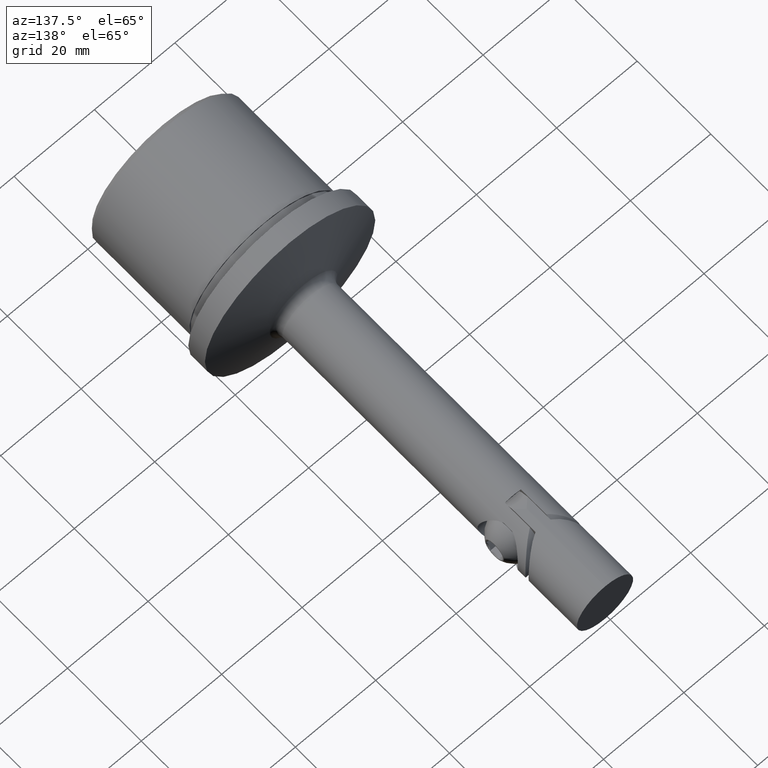
[diagram: clean part render]
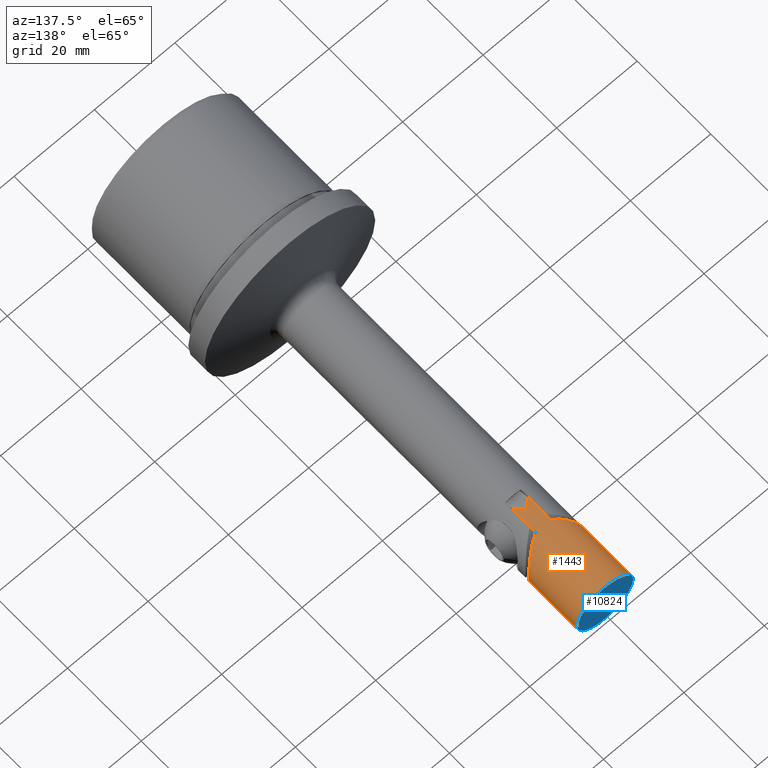
[diagram: same view with the hole feature highlighted: cylindrical wall and planar end face, labeled with their STEP entity ids]
A machine part, auxiliary view. The highlighted faces form one hole feature of diameter 14 mm: the cylindrical wall (entity #1443, orange) and its adjacent planar end face (entity #10824, blue) — they share a circular edge in the B-rep.
Wall:
#11 = VERTEX_POINT ( 'NONE', #8465 ) ;
#12 = CARTESIAN_POINT ( 'NONE',  ( -4.444470729695034983, 13.01976930336969396, -5.420074177856618824 ) ) ;
#146 = VECTOR ( 'NONE', #11078, 1000.000000000000000 ) ;
#178 = CARTESIAN_POINT ( 'NONE',  ( -1.875000000000000000, 28.25000000000000000, 6.744210480108105976 ) ) ;
#316 = VERTEX_POINT ( 'NONE', #12863 ) ;
#400 = VERTEX_POINT ( 'NONE', #2899 ) ;
#580 = DIRECTION ( 'NONE',  ( 0.000000000000000000, 0.000000000000000000, -1.000000000000000000 ) ) ;
#783 = CARTESIAN_POINT ( 'NONE',  ( -3.247415731269818195, 12.17450464073439775, 6.211640336948512697 ) ) ;
#855 = CARTESIAN_POINT ( 'NONE',  ( 4.968334996592647990, 13.42431543252754800, 4.944055591018135409 ) ) ;
#913 = CARTESIAN_POINT ( 'NONE',  ( 6.853088292457032438, 14.99877044911654700, 1.440978315316501002 ) ) ;
#923 = ORIENTED_EDGE ( 'NONE', *, *, #12327, .T. ) ;
#934 = CARTESIAN_POINT ( 'NONE',  ( -5.897845151468378511, 14.18209588050084413, -3.790003878335321819 ) ) ;
#935 = DIRECTION ( 'NONE',  ( 0.000000000000000000, 0.000000000000000000, 1.000000000000000000 ) ) ;
#954 = CARTESIAN_POINT ( 'NONE',  ( -0.6346721524424630001, 6.365327847557535890, 6.999999999999998224 ) ) ;
#984 = CARTESIAN_POINT ( 'NONE',  ( -4.978846807629232707, 13.43258001132234369, -4.933721579775677490 ) ) ;
#1026 = CARTESIAN_POINT ( 'NONE',  ( 1.875000000000000000, 28.25000000000000000, 6.744210480108105976 ) ) ;
#1111 = VERTEX_POINT ( 'NONE', #6866 ) ;
#1443 = ADVANCED_FACE ( 'NONE', ( #13605, #10431 ), #6940, .T. ) ;
#1549 = LINE ( 'NONE', #178, #13253 ) ;
#1677 = ORIENTED_EDGE ( 'NONE', *, *, #13046, .F. ) ;
#1895 = CARTESIAN_POINT ( 'NONE',  ( 5.216251480276107522, 13.62250842309042831, 4.682475905222473145 ) ) ;
#1950 = EDGE_CURVE ( 'NONE', #10778, #6107, #1549, .T. ) ;
#1978 = CARTESIAN_POINT ( 'NONE',  ( 0.000000000000000000, 6.999999999999999112, -7.000000000000000888 ) ) ;
#2006 = CARTESIAN_POINT ( 'NONE',  ( -6.999124456094294011, 15.12625055325181478, 0.4328039309549454039 ) ) ;
#2052 = CARTESIAN_POINT ( 'NONE',  ( -6.961103710124394439, 15.09292649153553434, 0.8414188817636658602 ) ) ;
#2084 = CARTESIAN_POINT ( 'NONE',  ( 4.444470729695034983, 13.01976930336969396, -5.420074177856618824 ) ) ;
#2492 = CARTESIAN_POINT ( 'NONE',  ( 0.6346721524424630001, 6.365327847557535890, -6.999999999999998224 ) ) ;
#2864 = ORIENTED_EDGE ( 'NONE', *, *, #5945, .T. ) ;
#2899 = CARTESIAN_POINT ( 'NONE',  ( 1.875000000000000000, 11.42999527330720788, -6.744210480108105976 ) ) ;
#2905 = CARTESIAN_POINT ( 'NONE',  ( -6.270841358666814358, 14.49676089558419179, 3.134080160535944071 ) ) ;
#2935 = CARTESIAN_POINT ( 'NONE',  ( 3.247415731269818195, 12.17450464073439775, 6.211640336948512697 ) ) ;
#2951 = CARTESIAN_POINT ( 'NONE',  ( -5.677571809243510792, 13.99847613985884465, 4.110965635876204338 ) ) ;
#2983 = CARTESIAN_POINT ( 'NONE',  ( 5.227172969591235230, 13.63129646673787398, -4.670247654447395647 ) ) ;
#3018 =( BOUNDED_CURVE ( )  B_SPLINE_CURVE ( 3, ( #7353, #954, #12547, #8293 ),
 .UNSPECIFIED., .F., .F. ) 
 B_SPLINE_CURVE_WITH_KNOTS ( ( 4, 4 ),
 ( 4.712388980384689674, 4.983557192078251319 ),
 .UNSPECIFIED. ) 
 CURVE ( )  GEOMETRIC_REPRESENTATION_ITEM ( )  RATIONAL_B_SPLINE_CURVE ( ( 1.000000000000000000, 0.9938816981225091496, 0.9938816981225091496, 1.000000000000000000 ) ) 
 REPRESENTATION_ITEM ( '' )  );
#3039 = CARTESIAN_POINT ( 'NONE',  ( 6.822093582672969170, 14.97174402274311511, -1.620508319585259649 ) ) ;
#3053 = CARTESIAN_POINT ( 'NONE',  ( -6.822093582672969170, 14.97174402274311511, -1.620508319585259649 ) ) ;
#3103 = CARTESIAN_POINT ( 'NONE',  ( -5.686661191733224818, 14.00600161820608847, -4.098345385436895860 ) ) ;
#3344 = VERTEX_POINT ( 'NONE', #7076 ) ;
#3452 = CARTESIAN_POINT ( 'NONE',  ( 0.000000000000000000, 6.999999999999999112, -7.000000000000000888 ) ) ;
#3467 = CARTESIAN_POINT ( 'NONE',  ( 1.263519631152107525, 5.736480368847891143, -6.914211949512336197 ) ) ;
#3533 = CARTESIAN_POINT ( 'NONE',  ( 1.263519631152110634, 5.736480368847889366, 6.914211949512336197 ) ) ;
#3536 = CARTESIAN_POINT ( 'NONE',  ( -1.875000000000000000, 11.42999527330720788, -6.744210480108105976 ) ) ;
#3999 = CARTESIAN_POINT ( 'NONE',  ( 4.161715149968415517, 12.80819745725684911, -5.639737227025754862 ) ) ;
#4050 = CARTESIAN_POINT ( 'NONE',  ( 2.246010121242184798, 11.59166095627719706, -6.641063643368523728 ) ) ;
#4093 = CARTESIAN_POINT ( 'NONE',  ( 3.558292956201582147, 12.38219335462805226, 6.038705676749675177 ) ) ;
#4200 = EDGE_CURVE ( 'NONE', #400, #7354, #9360, .T. ) ;
#4206 = CARTESIAN_POINT ( 'NONE',  ( -2.246010121242184798, 11.59166095627719706, -6.641063643368523728 ) ) ;
#4451 = CARTESIAN_POINT ( 'NONE',  ( -0.6346721524424647765, 6.365327847557535001, -6.999999999999998224 ) ) ;
#4455 =( BOUNDED_CURVE ( )  B_SPLINE_CURVE ( 3, ( #10843, #9731, #4451, #3452 ),
 .UNSPECIFIED., .F., .F. ) 
 B_SPLINE_CURVE_WITH_KNOTS ( ( 4, 4 ),
 ( 1.299628115101334913, 1.570796326794896558 ),
 .UNSPECIFIED. ) 
 CURVE ( )  GEOMETRIC_REPRESENTATION_ITEM ( )  RATIONAL_B_SPLINE_CURVE ( ( 1.000000000000000000, 0.9938816981225091496, 0.9938816981225091496, 1.000000000000000000 ) ) 
 REPRESENTATION_ITEM ( '' )  );
#4738 = AXIS2_PLACEMENT_3D ( 'NONE', #12532, #6155, #935 ) ;
#5011 = CARTESIAN_POINT ( 'NONE',  ( -1.875000000000000000, 11.42999527330720788, 6.744210480108105976 ) ) ;
#5044 = CARTESIAN_POINT ( 'NONE',  ( 2.591551619039359711, 11.77971112482426363, 6.512606606663648101 ) ) ;
#5058 = CARTESIAN_POINT ( 'NONE',  ( -5.216251480276107522, 13.62250842309042831, 4.682475905222473145 ) ) ;
#5130 = CARTESIAN_POINT ( 'NONE',  ( 5.686661191733224818, 14.00600161820608847, -4.098345385436895860 ) ) ;
#5183 = CARTESIAN_POINT ( 'NONE',  ( 4.438296957797502884, 13.01514871378276261, 5.424901698634768898 ) ) ;
#5405 = EDGE_CURVE ( 'NONE', #11, #11, #7669, .T. ) ;
#5455 =( BOUNDED_CURVE ( )  B_SPLINE_CURVE ( 3, ( #8767, #2492, #3467, #9666 ),
 .UNSPECIFIED., .F., .F. ) 
 B_SPLINE_CURVE_WITH_KNOTS ( ( 4, 4 ),
 ( 4.712388980384689674, 4.983557192078251319 ),
 .UNSPECIFIED. ) 
 CURVE ( )  GEOMETRIC_REPRESENTATION_ITEM ( )  RATIONAL_B_SPLINE_CURVE ( ( 1.000000000000000000, 0.9938816981225091496, 0.9938816981225091496, 1.000000000000000000 ) ) 
 REPRESENTATION_ITEM ( '' )  );
#5756 = CARTESIAN_POINT ( 'NONE',  ( 0.000000000000000000, 28.25000000000000000, 0.000000000000000000 ) ) ;
#5864 = CARTESIAN_POINT ( 'NONE',  ( -6.808525548660764315, 14.95998058818260645, 1.638589722036043250 ) ) ;
#5945 = EDGE_CURVE ( 'NONE', #6407, #400, #9553, .T. ) ;
#5999 = EDGE_CURVE ( 'NONE', #1111, #3344, #7281, .T. ) ;
#6010 = CARTESIAN_POINT ( 'NONE',  ( -4.154104205314623321, 12.80257963410236854, 5.645425870910885102 ) ) ;
#6038 = CARTESIAN_POINT ( 'NONE',  ( 6.435303035272427863, 14.63756225102308939, 2.782985708166055616 ) ) ;
#6088 = CARTESIAN_POINT ( 'NONE',  ( 2.246961999187492065, 11.59207573201867447, 6.640799005846798941 ) ) ;
#6107 = VERTEX_POINT ( 'NONE', #8177 ) ;
#6155 = DIRECTION ( 'NONE',  ( 0.000000000000000000, 1.000000000000000000, 0.000000000000000000 ) ) ;
#6229 = CARTESIAN_POINT ( 'NONE',  ( 6.278469543756190596, 14.50324504480011178, -3.119218975420256612 ) ) ;
#6245 = DIRECTION ( 'NONE',  ( 0.000000000000000000, 1.000000000000000000, 0.000000000000000000 ) ) ;
#6295 = CARTESIAN_POINT ( 'NONE',  ( -7.000845920054777238, 15.12775683347022060, -0.4040034631035354096 ) ) ;
#6407 = VERTEX_POINT ( 'NONE', #7191 ) ;
#6548 = DIRECTION ( 'NONE',  ( -0.000000000000000000, -1.000000000000000000, -0.000000000000000000 ) ) ;
#6679 = B_SPLINE_CURVE_WITH_KNOTS ( 'NONE', 3,
 ( #5011, #11383, #13369, #783, #9147, #6010, #8110, #9235, #5058, #2951, #9187, #2905, #10258, #12424, #10303, #5864, #8268, #2052, #2006, #6295, #9340, #3053, #13515, #7243, #10350, #934, #3103, #9291, #984, #12, #7333, #8326, #9394, #10392, #4206, #8212 ),
 .UNSPECIFIED., .F., .F.,
 ( 4, 2, 2, 2, 2, 2, 2, 2, 2, 2, 2, 2, 2, 2, 2, 2, 2, 4 ),
 ( 0.000000000000000000, 0.001233632388190115600, 0.002467264776380231200, 0.003700897164570347234, 0.004934529552760462401, 0.006168161940950578001, 0.007401794329140694469, 0.008018610523235750534, 0.008635426717330807467, 0.009869059105520921332, 0.01110269149371103520, 0.01233632388190114733, 0.01356995627009126119, 0.01480358865828137332, 0.01603722104647148719, 0.01727085343466160106, 0.01850448582285171492, 0.01973811821104182879 ),
 .UNSPECIFIED. ) ;
#6795 = VECTOR ( 'NONE', #13680, 1000.000000000000000 ) ;
#6803 = ORIENTED_EDGE ( 'NONE', *, *, #7847, .F. ) ;
#6866 = CARTESIAN_POINT ( 'NONE',  ( 1.875000000000000888, 5.124999999999997335, 6.744210480108105088 ) ) ;
#6940 = CYLINDRICAL_SURFACE ( 'NONE', #8276, 7.000000000000000000 ) ;
#6949 = LINE ( 'NONE', #10558, #6795 ) ;
#7076 = CARTESIAN_POINT ( 'NONE',  ( 0.000000000000000000, 6.999999999999999112, 7.000000000000000888 ) ) ;
#7130 = CARTESIAN_POINT ( 'NONE',  ( 6.961103710124394439, 15.09292649153553434, 0.8414188817636658602 ) ) ;
#7177 = CARTESIAN_POINT ( 'NONE',  ( 1.875000000000000000, 11.42999527330720788, 6.744210480108105976 ) ) ;
#7191 = CARTESIAN_POINT ( 'NONE',  ( 1.875000000000000000, 11.42999527330720788, 6.744210480108105976 ) ) ;
#7226 = CARTESIAN_POINT ( 'NONE',  ( 6.808525548660764315, 14.95998058818260645, 1.638589722036043250 ) ) ;
#7243 = CARTESIAN_POINT ( 'NONE',  ( -6.443005046304170591, 14.64416816793717224, -2.765088036341678546 ) ) ;
#7275 = CARTESIAN_POINT ( 'NONE',  ( 6.443005046304170591, 14.64416816793717224, -2.765088036341678546 ) ) ;
#7281 =( BOUNDED_CURVE ( )  B_SPLINE_CURVE ( 3, ( #10617, #3533, #9819, #10746 ),
 .UNSPECIFIED., .F., .F. ) 
 B_SPLINE_CURVE_WITH_KNOTS ( ( 4, 4 ),
 ( 1.299628115101334691, 1.570796326794896558 ),
 .UNSPECIFIED. ) 
 CURVE ( )  GEOMETRIC_REPRESENTATION_ITEM ( )  RATIONAL_B_SPLINE_CURVE ( ( 1.000000000000000000, 0.9938816981225091496, 0.9938816981225091496, 1.000000000000000000 ) ) 
 REPRESENTATION_ITEM ( '' )  );
#7333 = CARTESIAN_POINT ( 'NONE',  ( -4.161715149968415517, 12.80819745725684911, -5.639737227025754862 ) ) ;
#7353 = CARTESIAN_POINT ( 'NONE',  ( 0.000000000000000000, 6.999999999999999112, 7.000000000000000888 ) ) ;
#7354 = VERTEX_POINT ( 'NONE', #11226 ) ;
#7607 = ORIENTED_EDGE ( 'NONE', *, *, #12563, .F. ) ;
#7669 = CIRCLE ( 'NONE', #4738, 7.000000000000000000 ) ;
#7847 = EDGE_CURVE ( 'NONE', #3344, #6107, #3018, .T. ) ;
#7963 = ORIENTED_EDGE ( 'NONE', *, *, #9678, .T. ) ;
#8039 = VECTOR ( 'NONE', #6245, 1000.000000000000000 ) ;
#8110 = CARTESIAN_POINT ( 'NONE',  ( -4.438296957797502884, 13.01514871378276261, 5.424901698634768898 ) ) ;
#8177 = CARTESIAN_POINT ( 'NONE',  ( -1.875000000000000000, 5.124999999999999112, 6.744210480108106864 ) ) ;
#8212 = CARTESIAN_POINT ( 'NONE',  ( -1.875000000000000000, 11.42999527330720788, -6.744210480108105976 ) ) ;
#8268 = CARTESIAN_POINT ( 'NONE',  ( -6.853088292457032438, 14.99877044911654700, 1.440978315316501002 ) ) ;
#8276 = AXIS2_PLACEMENT_3D ( 'NONE', #5756, #13037, #580 ) ;
#8293 = CARTESIAN_POINT ( 'NONE',  ( -1.875000000000000000, 5.124999999999999112, 6.744210480108106864 ) ) ;
#8326 = CARTESIAN_POINT ( 'NONE',  ( -3.568628989892555392, 12.38924576317919346, -6.032528169173783539 ) ) ;
#8465 = CARTESIAN_POINT ( 'NONE',  ( 0.000000000000000000, 28.25000000000000000, 7.000000000000000000 ) ) ;
#8729 = LINE ( 'NONE', #1026, #8039 ) ;
#8745 = ORIENTED_EDGE ( 'NONE', *, *, #1950, .T. ) ;
#8767 = CARTESIAN_POINT ( 'NONE',  ( 0.000000000000000000, 6.999999999999999112, -7.000000000000000888 ) ) ;
#8785 = EDGE_LOOP ( 'NONE', ( #12399 ) ) ;
#8995 = EDGE_LOOP ( 'NONE', ( #9940, #8745, #6803, #11110, #923, #2864, #10807, #7607, #1677, #7963 ) ) ;
#9147 = CARTESIAN_POINT ( 'NONE',  ( -3.558292956201582147, 12.38219335462805226, 6.038705676749675177 ) ) ;
#9187 = CARTESIAN_POINT ( 'NONE',  ( -5.892575913362941620, 14.17769958089967197, 3.797822916288507322 ) ) ;
#9217 = CARTESIAN_POINT ( 'NONE',  ( 5.892575913362941620, 14.17769958089967197, 3.797822916288507322 ) ) ;
#9235 = CARTESIAN_POINT ( 'NONE',  ( -4.968334996592647990, 13.42431543252754800, 4.944055591018135409 ) ) ;
#9291 = CARTESIAN_POINT ( 'NONE',  ( -5.227172969591235230, 13.63129646673787398, -4.670247654447395647 ) ) ;
#9316 = VERTEX_POINT ( 'NONE', #3536 ) ;
#9325 = CARTESIAN_POINT ( 'NONE',  ( 4.154104205314623321, 12.80257963410236854, 5.645425870910885102 ) ) ;
#9340 = CARTESIAN_POINT ( 'NONE',  ( -6.964318393697492837, 15.09573783922798995, -0.8156453737988926811 ) ) ;
#9360 = LINE ( 'NONE', #11039, #146 ) ;
#9375 = CARTESIAN_POINT ( 'NONE',  ( 4.978846807629232707, 13.43258001132234369, -4.933721579775677490 ) ) ;
#9394 = CARTESIAN_POINT ( 'NONE',  ( -3.257474967530977317, 12.18087779852556451, -6.206563006167532315 ) ) ;
#9416 = CARTESIAN_POINT ( 'NONE',  ( 6.999124456094294011, 15.12625055325181478, 0.4328039309549454039 ) ) ;
#9553 = B_SPLINE_CURVE_WITH_KNOTS ( 'NONE', 3,
 ( #7177, #6088, #5044, #2935, #4093, #9325, #5183, #855, #1895, #11461, #9217, #12407, #6038, #10333, #11361, #7226, #913, #7130, #9416, #10237, #10380, #3039, #10289, #7275, #6229, #12604, #5130, #2983, #9375, #2084, #3999, #12559, #13501, #12464, #4050, #13647 ),
 .UNSPECIFIED., .F., .F.,
 ( 4, 2, 2, 2, 2, 2, 2, 2, 2, 2, 2, 2, 2, 2, 2, 2, 2, 4 ),
 ( 0.000000000000000000, 0.001233632388190115600, 0.002467264776380231200, 0.003700897164570347234, 0.004934529552760462401, 0.006168161940950578001, 0.007401794329140694469, 0.008018610523235750534, 0.008635426717330807467, 0.009869059105520921332, 0.01110269149371103520, 0.01233632388190114733, 0.01356995627009126119, 0.01480358865828137332, 0.01603722104647148719, 0.01727085343466160106, 0.01850448582285171492, 0.01973811821104182879 ),
 .UNSPECIFIED. ) ;
#9584 = VERTEX_POINT ( 'NONE', #1978 ) ;
#9666 = CARTESIAN_POINT ( 'NONE',  ( 1.875000000000000000, 5.124999999999997335, -6.744210480108105976 ) ) ;
#9678 = EDGE_CURVE ( 'NONE', #316, #9316, #6949, .T. ) ;
#9731 = CARTESIAN_POINT ( 'NONE',  ( -1.263519631152109524, 5.736480368847889366, -6.914211949512335309 ) ) ;
#9819 = CARTESIAN_POINT ( 'NONE',  ( 0.6346721524424652205, 6.365327847557534113, 6.999999999999998224 ) ) ;
#9940 = ORIENTED_EDGE ( 'NONE', *, *, #12290, .F. ) ;
#10237 = CARTESIAN_POINT ( 'NONE',  ( 7.000845920054777238, 15.12775683347022060, -0.4040034631035354096 ) ) ;
#10258 = CARTESIAN_POINT ( 'NONE',  ( -6.435303035272427863, 14.63756225102308939, 2.782985708166055616 ) ) ;
#10289 = CARTESIAN_POINT ( 'NONE',  ( 6.714625951683966143, 14.87823943029263063, -2.017876161808014768 ) ) ;
#10303 = CARTESIAN_POINT ( 'NONE',  ( -6.702428690253216637, 14.86793741288952653, 2.029395495215024159 ) ) ;
#10333 = CARTESIAN_POINT ( 'NONE',  ( 6.640635021691728923, 14.81446265323815581, 2.222948528552125325 ) ) ;
#10350 = CARTESIAN_POINT ( 'NONE',  ( -6.278469543756190596, 14.50324504480011178, -3.119218975420256612 ) ) ;
#10380 = CARTESIAN_POINT ( 'NONE',  ( 6.964318393697492837, 15.09573783922798995, -0.8156453737988926811 ) ) ;
#10392 = CARTESIAN_POINT ( 'NONE',  ( -2.595981951055086334, 11.78206677128375723, -6.511024898079757151 ) ) ;
#10431 = FACE_OUTER_BOUND ( 'NONE', #8995, .T. ) ;
#10558 = CARTESIAN_POINT ( 'NONE',  ( -1.875000000000000000, 28.25000000000000000, -6.744210480108105976 ) ) ;
#10617 = CARTESIAN_POINT ( 'NONE',  ( 1.875000000000000888, 5.124999999999997335, 6.744210480108105088 ) ) ;
#10746 = CARTESIAN_POINT ( 'NONE',  ( 0.000000000000000000, 6.999999999999999112, 7.000000000000000888 ) ) ;
#10778 = VERTEX_POINT ( 'NONE', #11386 ) ;
#10807 = ORIENTED_EDGE ( 'NONE', *, *, #4200, .T. ) ;
#10843 = CARTESIAN_POINT ( 'NONE',  ( -1.875000000000000000, 5.124999999999999112, -6.744210480108105088 ) ) ;
#11039 = CARTESIAN_POINT ( 'NONE',  ( 1.875000000000000000, 28.25000000000000000, -6.744210480108105976 ) ) ;
#11078 = DIRECTION ( 'NONE',  ( -0.000000000000000000, -1.000000000000000000, -0.000000000000000000 ) ) ;
#11110 = ORIENTED_EDGE ( 'NONE', *, *, #5999, .F. ) ;
#11226 = CARTESIAN_POINT ( 'NONE',  ( 1.875000000000000000, 5.124999999999997335, -6.744210480108105976 ) ) ;
#11361 = CARTESIAN_POINT ( 'NONE',  ( 6.702428690253216637, 14.86793741288952653, 2.029395495215024159 ) ) ;
#11383 = CARTESIAN_POINT ( 'NONE',  ( -2.246961999187492065, 11.59207573201867447, 6.640799005846798941 ) ) ;
#11386 = CARTESIAN_POINT ( 'NONE',  ( -1.875000000000000000, 11.42999527330720788, 6.744210480108105976 ) ) ;
#11461 = CARTESIAN_POINT ( 'NONE',  ( 5.677571809243510792, 13.99847613985884465, 4.110965635876204338 ) ) ;
#12290 = EDGE_CURVE ( 'NONE', #10778, #9316, #6679, .T. ) ;
#12327 = EDGE_CURVE ( 'NONE', #1111, #6407, #8729, .T. ) ;
#12399 = ORIENTED_EDGE ( 'NONE', *, *, #5405, .F. ) ;
#12407 = CARTESIAN_POINT ( 'NONE',  ( 6.270841358666814358, 14.49676089558419179, 3.134080160535944071 ) ) ;
#12424 = CARTESIAN_POINT ( 'NONE',  ( -6.640635021691728923, 14.81446265323815581, 2.222948528552125325 ) ) ;
#12464 = CARTESIAN_POINT ( 'NONE',  ( 2.595981951055086334, 11.78206677128375723, -6.511024898079757151 ) ) ;
#12532 = CARTESIAN_POINT ( 'NONE',  ( 0.000000000000000000, 28.25000000000000000, 0.000000000000000000 ) ) ;
#12547 = CARTESIAN_POINT ( 'NONE',  ( -1.263519631152107525, 5.736480368847891143, 6.914211949512336197 ) ) ;
#12559 = CARTESIAN_POINT ( 'NONE',  ( 3.568628989892555392, 12.38924576317919346, -6.032528169173783539 ) ) ;
#12563 = EDGE_CURVE ( 'NONE', #9584, #7354, #5455, .T. ) ;
#12604 = CARTESIAN_POINT ( 'NONE',  ( 5.897845151468378511, 14.18209588050084413, -3.790003878335321819 ) ) ;
#12863 = CARTESIAN_POINT ( 'NONE',  ( -1.875000000000000000, 5.124999999999999112, -6.744210480108105088 ) ) ;
#13037 = DIRECTION ( 'NONE',  ( -0.000000000000000000, -1.000000000000000000, -0.000000000000000000 ) ) ;
#13046 = EDGE_CURVE ( 'NONE', #316, #9584, #4455, .T. ) ;
#13253 = VECTOR ( 'NONE', #6548, 1000.000000000000000 ) ;
#13369 = CARTESIAN_POINT ( 'NONE',  ( -2.591551619039359711, 11.77971112482426363, 6.512606606663648101 ) ) ;
#13501 = CARTESIAN_POINT ( 'NONE',  ( 3.257474967530977317, 12.18087779852556451, -6.206563006167532315 ) ) ;
#13515 = CARTESIAN_POINT ( 'NONE',  ( -6.714625951683966143, 14.87823943029263063, -2.017876161808014768 ) ) ;
#13605 = FACE_OUTER_BOUND ( 'NONE', #8785, .T. ) ;
#13647 = CARTESIAN_POINT ( 'NONE',  ( 1.875000000000000000, 11.42999527330720788, -6.744210480108105976 ) ) ;
#13680 = DIRECTION ( 'NONE',  ( 0.000000000000000000, 1.000000000000000000, 0.000000000000000000 ) ) ;
End face:
#11 = VERTEX_POINT ( 'NONE', #8465 ) ;
#875 = PLANE ( 'NONE',  #2352 ) ;
#935 = DIRECTION ( 'NONE',  ( 0.000000000000000000, 0.000000000000000000, 1.000000000000000000 ) ) ;
#1028 = DIRECTION ( 'NONE',  ( 0.000000000000000000, 1.000000000000000000, 0.000000000000000000 ) ) ;
#1729 = ORIENTED_EDGE ( 'NONE', *, *, #5405, .T. ) ;
#1881 = FACE_OUTER_BOUND ( 'NONE', #5322, .T. ) ;
#2352 = AXIS2_PLACEMENT_3D ( 'NONE', #5103, #1028, #13563 ) ;
#4738 = AXIS2_PLACEMENT_3D ( 'NONE', #12532, #6155, #935 ) ;
#5103 = CARTESIAN_POINT ( 'NONE',  ( 0.000000000000000000, 28.25000000000000000, 0.000000000000000000 ) ) ;
#5322 = EDGE_LOOP ( 'NONE', ( #1729 ) ) ;
#5405 = EDGE_CURVE ( 'NONE', #11, #11, #7669, .T. ) ;
#6155 = DIRECTION ( 'NONE',  ( 0.000000000000000000, 1.000000000000000000, 0.000000000000000000 ) ) ;
#7669 = CIRCLE ( 'NONE', #4738, 7.000000000000000000 ) ;
#8465 = CARTESIAN_POINT ( 'NONE',  ( 0.000000000000000000, 28.25000000000000000, 7.000000000000000000 ) ) ;
#10824 = ADVANCED_FACE ( 'NONE', ( #1881 ), #875, .T. ) ;
#12532 = CARTESIAN_POINT ( 'NONE',  ( 0.000000000000000000, 28.25000000000000000, 0.000000000000000000 ) ) ;
#13563 = DIRECTION ( 'NONE',  ( 0.000000000000000000, -0.000000000000000000, 1.000000000000000000 ) ) ;